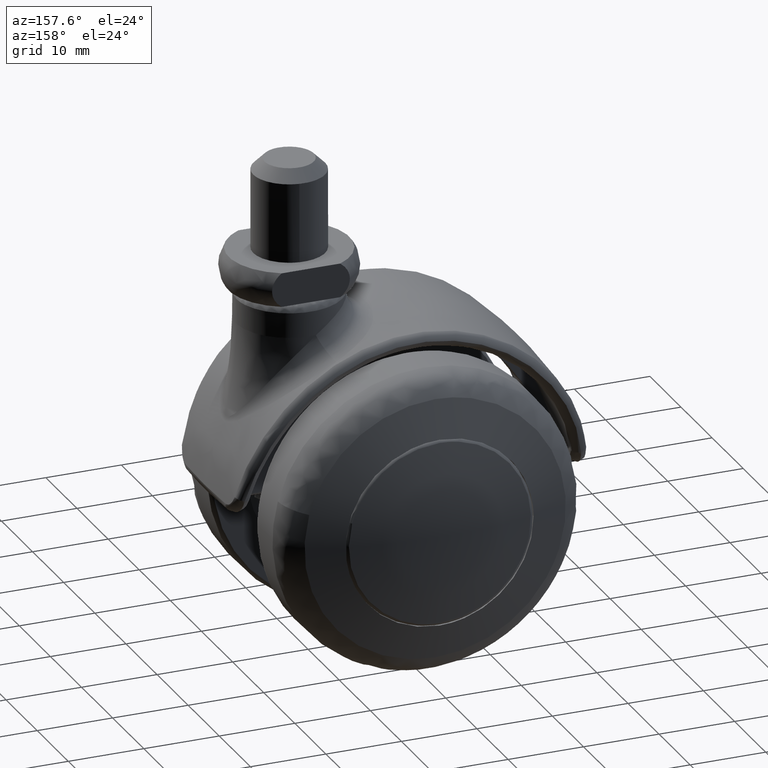
[diagram: clean part render]
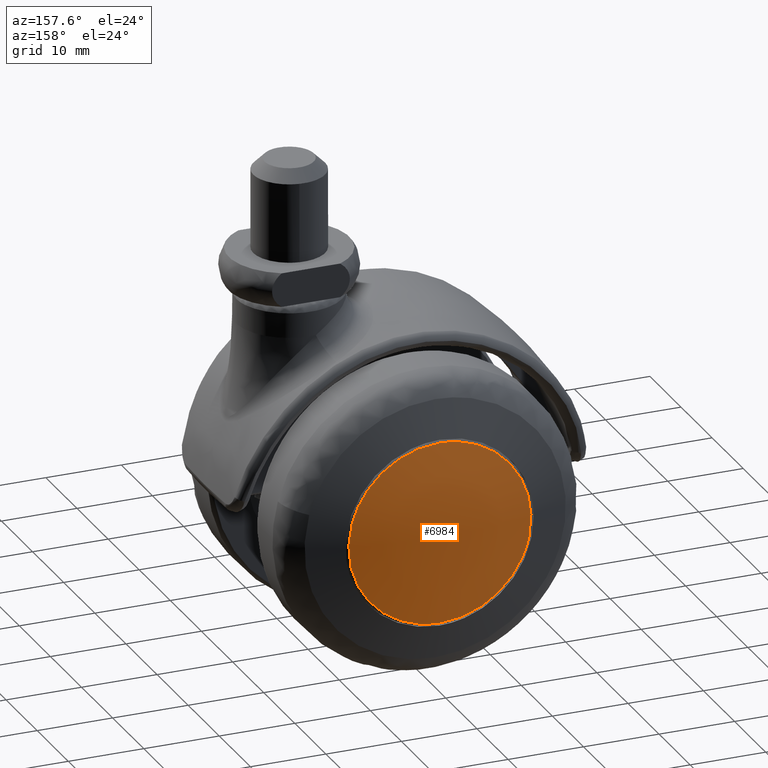
[diagram: same view with one face highlighted and labeled with its STEP entity id]
A machine part, auxiliary view. The second image highlights one B-rep face of the part: STEP entity #6984.
In plain terms, the highlighted face is a freeform B-spline surface patch.
Its self-contained STEP definition (entity closure, byte-faithful):
#5220=CARTESIAN_POINT('',(11.624352625806290,18.104171105002841,3.227796983644148));
#5221=VERTEX_POINT('',#5220);
#5235=CARTESIAN_POINT('',(0.0,18.104171123358299,12.064171975249531));
#5236=VERTEX_POINT('',#5235);
#5237=CARTESIAN_POINT('',(0.0,18.104171123358299,12.064171975249531));
#5238=CARTESIAN_POINT('',(9.170708417135487,18.104171123358299,12.064171975249524));
#5239=CARTESIAN_POINT('',(11.624352625806289,18.104171105002838,3.227796983644148));
#5247=(BOUNDED_CURVE()B_SPLINE_CURVE(2,(#5237,#5238,#5239),.UNSPECIFIED.,.F.,.U.)B_SPLINE_CURVE_WITH_KNOTS((3,3),(0.500000000000000,0.704398610759922),.UNSPECIFIED.)CURVE()GEOMETRIC_REPRESENTATION_ITEM()RATIONAL_B_SPLINE_CURVE((1.0,0.760532131894114,0.912639460288094))REPRESENTATION_ITEM(''));
#5248=EDGE_CURVE('',#5236,#5221,#5247,.T.);
#5250=CARTESIAN_POINT('',(-11.789930810766950,18.104171098746860,-2.557690258343031));
#5251=VERTEX_POINT('',#5250);
#5252=CARTESIAN_POINT('',(-11.789930810766949,18.104171098746857,-2.557690258343031));
#5253=CARTESIAN_POINT('',(-12.064171975249517,18.104171123358299,-1.293547500070639));
#5254=CARTESIAN_POINT('',(-12.064171975249520,18.104171123358299,4.440892E-015));
#5255=CARTESIAN_POINT('',(-12.064171975249520,18.104171123358302,12.064171975249522));
#5256=CARTESIAN_POINT('',(0.0,18.104171123358299,12.064171975249531));
#5264=(BOUNDED_CURVE()B_SPLINE_CURVE(2,(#5252,#5253,#5254,#5255,#5256),.UNSPECIFIED.,.F.,.U.)B_SPLINE_CURVE_WITH_KNOTS((3,2,3),(0.213703258473060,0.250000000000000,0.500000000000000),.UNSPECIFIED.)CURVE()GEOMETRIC_REPRESENTATION_ITEM()RATIONAL_B_SPLINE_CURVE((0.927299386102889,0.957475722166939,1.0,0.707106781186547,1.0))REPRESENTATION_ITEM(''));
#5265=EDGE_CURVE('',#5251,#5236,#5264,.T.);
#5318=CARTESIAN_POINT('',(0.0,18.104171123358299,-12.064171975249520));
#5319=VERTEX_POINT('',#5318);
#5320=CARTESIAN_POINT('',(0.0,18.104171123358299,-12.064171975249520));
#5321=CARTESIAN_POINT('',(-9.727608532988381,18.104171123358306,-12.064171975249513));
#5322=CARTESIAN_POINT('',(-11.789930810766950,18.104171098746860,-2.557690258343031));
#5330=(BOUNDED_CURVE()B_SPLINE_CURVE(2,(#5320,#5321,#5322),.UNSPECIFIED.,.F.,.U.)B_SPLINE_CURVE_WITH_KNOTS((3,3),(0.0,0.213703258473060),.UNSPECIFIED.)CURVE()GEOMETRIC_REPRESENTATION_ITEM()RATIONAL_B_SPLINE_CURVE((1.0,0.749631059019608,0.927299386102889))REPRESENTATION_ITEM(''));
#5331=EDGE_CURVE('',#5319,#5251,#5330,.T.);
#5333=CARTESIAN_POINT('',(11.624352625806294,18.104171105002841,3.227796983644148));
#5334=CARTESIAN_POINT('',(12.064171975249518,18.104171123358292,1.643863366507254));
#5335=CARTESIAN_POINT('',(12.064171975249520,18.104171123358299,4.440892E-015));
#5336=CARTESIAN_POINT('',(12.064171975249520,18.104171123358302,-12.064171975249515));
#5337=CARTESIAN_POINT('',(0.0,18.104171123358299,-12.064171975249520));
#5345=(BOUNDED_CURVE()B_SPLINE_CURVE(2,(#5333,#5334,#5335,#5336,#5337),.UNSPECIFIED.,.F.,.U.)B_SPLINE_CURVE_WITH_KNOTS((3,2,3),(0.704398610759922,0.750000000000000,1.0),.UNSPECIFIED.)CURVE()GEOMETRIC_REPRESENTATION_ITEM()RATIONAL_B_SPLINE_CURVE((0.912639460288095,0.946574649292434,1.0,0.707106781186547,1.0))REPRESENTATION_ITEM(''));
#5346=EDGE_CURVE('',#5221,#5319,#5345,.T.);
#6954=CARTESIAN_POINT('',(-13.021401538996512,16.185823676174557,13.025256232780533));
#6955=CARTESIAN_POINT('',(-6.614398536793522,17.816020644564563,13.232713162166053));
#6956=CARTESIAN_POINT('',(6.614249017386702,17.816020644564563,13.232713162166053));
#6957=CARTESIAN_POINT('',(13.021116417492511,16.185896221604565,13.025265464825765));
#6958=CARTESIAN_POINT('',(-13.228921838522155,17.817001337902063,6.616418982017512));
#6959=CARTESIAN_POINT('',(-6.721517432679109,19.500000000000028,6.723507187114472));
#6960=CARTESIAN_POINT('',(6.721365491834620,19.500000000000028,6.723507187114472));
#6961=CARTESIAN_POINT('',(13.228632322502778,17.817076214051504,6.616423746342421));
#6962=CARTESIAN_POINT('',(-13.228921838522155,17.817001337902063,-6.616419585284142));
#6963=CARTESIAN_POINT('',(-6.721517432679109,19.500000000000028,-6.723507800145105));
#6964=CARTESIAN_POINT('',(6.721365491834620,19.500000000000028,-6.723507800145105));
#6965=CARTESIAN_POINT('',(13.228632322502778,17.817076214051504,-6.616424349609485));
#6966=CARTESIAN_POINT('',(-13.021401501747885,16.185823383388165,-13.025257383127407));
#6967=CARTESIAN_POINT('',(-6.614398517571215,17.816020342377318,-13.232714330231929));
#6968=CARTESIAN_POINT('',(6.614248998164829,17.816020342377318,-13.232714330231929));
#6969=CARTESIAN_POINT('',(13.021116380244688,16.185895928817775,-13.025266615173441));
#6977=(BOUNDED_SURFACE()B_SPLINE_SURFACE(2,2,((#6954,#6958,#6962,#6966),(#6955,#6959,#6963,#6967),(#6956,#6960,#6964,#6968),(#6957,#6961,#6965,#6969)),.UNSPECIFIED.,.F.,.F.,.U.)B_SPLINE_SURFACE_WITH_KNOTS((3,1,3),(3,1,3),(12.887658299064640,25.913502099170419,38.939051448249813),(12.883802290248870,25.913502099170419,38.943203096103673),.UNSPECIFIED.)GEOMETRIC_REPRESENTATION_ITEM()RATIONAL_B_SPLINE_SURFACE(((1.032380026458672,1.016185221248535,1.016185221248535,1.032380029411867),(1.016194805210137,1.0,1.0,1.016194808163332),(1.016194805210137,1.0,1.0,1.016194808163332),(1.032379294728549,1.016184489518412,1.016184489518412,1.032379297681743)))REPRESENTATION_ITEM('')SURFACE());
#6978=ORIENTED_EDGE('',*,*,#5331,.T.);
#6979=ORIENTED_EDGE('',*,*,#5265,.T.);
#6980=ORIENTED_EDGE('',*,*,#5248,.T.);
#6981=ORIENTED_EDGE('',*,*,#5346,.T.);
#6982=EDGE_LOOP('',(#6978,#6979,#6980,#6981));
#6983=FACE_OUTER_BOUND('',#6982,.T.);
#6984=ADVANCED_FACE('',(#6983),#6977,.T.);